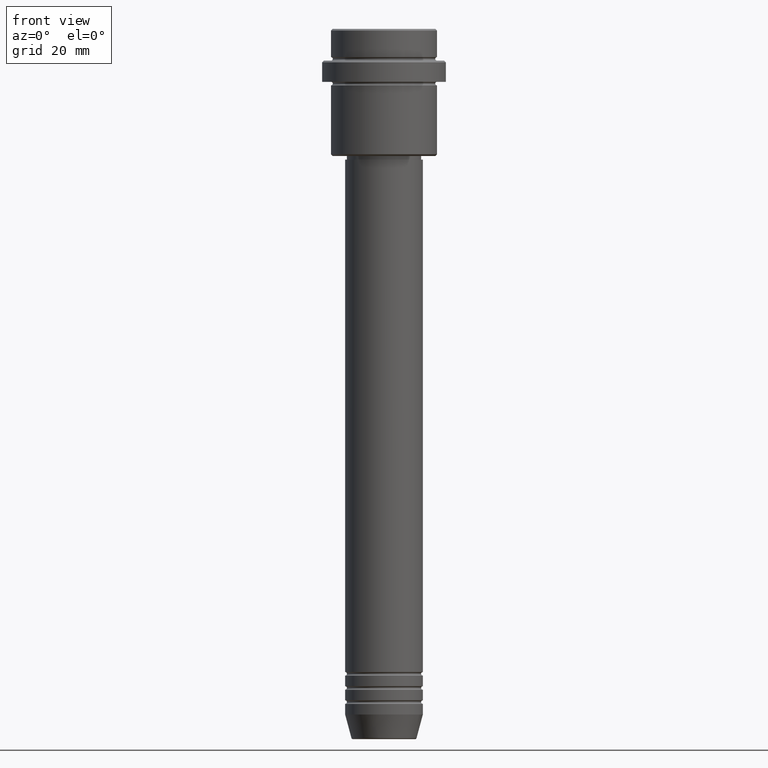
[diagram: clean part render]
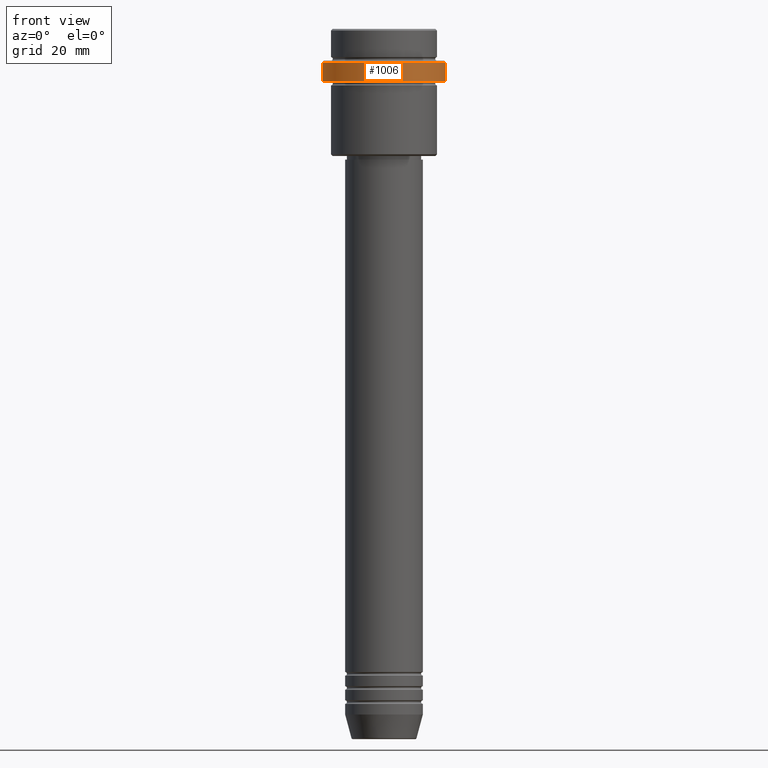
[diagram: same view with one face highlighted and labeled with its STEP entity id]
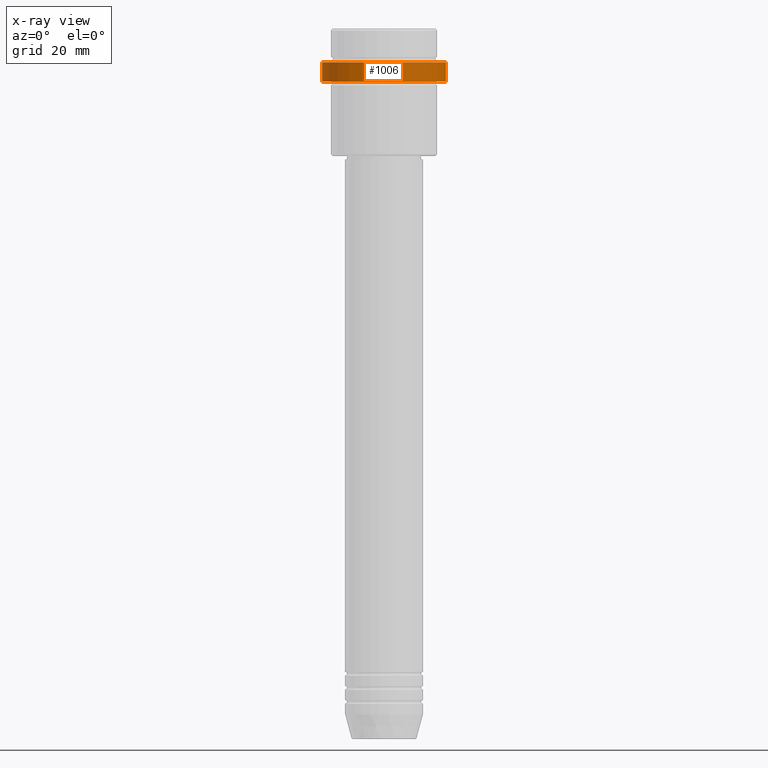
[diagram: x-ray of the same camera — body ghosted, the highlighted face saturated]
A machine part, front view. The second image highlights one B-rep face of the part: STEP entity #1006.
The next image is the same camera in x-ray: the body ghosted, the highlighted face saturated — about 0% of this face is hidden behind the body in this view.
In plain terms, the highlighted cylindrical surface (partial cylindrical patch) has radius 17.5 mm, axis along (-0, -0, 1).
Its self-contained STEP definition (entity closure, byte-faithful):
#132 = DIRECTION ( 'NONE',  ( -0.000000000000000000, -0.000000000000000000, 1.000000000000000000 ) ) ;
#179 = DIRECTION ( 'NONE',  ( 0.000000000000000000, 0.000000000000000000, -1.000000000000000000 ) ) ;
#207 = CARTESIAN_POINT ( 'NONE',  ( 0.000000000000000000, 0.000000000000000000, 0.000000000000000000 ) ) ;
#224 = VERTEX_POINT ( 'NONE', #732 ) ;
#296 = LINE ( 'NONE', #973, #729 ) ;
#302 = CYLINDRICAL_SURFACE ( 'NONE', #1038, 17.50000000000000000 ) ;
#347 = ORIENTED_EDGE ( 'NONE', *, *, #1024, .F. ) ;
#385 = VERTEX_POINT ( 'NONE', #582 ) ;
#405 = DIRECTION ( 'NONE',  ( -0.000000000000000000, -0.000000000000000000, 1.000000000000000000 ) ) ;
#499 = EDGE_CURVE ( 'NONE', #1247, #224, #1191, .T. ) ;
#521 = DIRECTION ( 'NONE',  ( -0.000000000000000000, -0.000000000000000000, 1.000000000000000000 ) ) ;
#582 = CARTESIAN_POINT ( 'NONE',  ( 17.50000000000000000, 0.000000000000000000, -15.00000000000000000 ) ) ;
#617 = CARTESIAN_POINT ( 'NONE',  ( 0.000000000000000000, 0.000000000000000000, -9.500000000000026645 ) ) ;
#709 = CIRCLE ( 'NONE', #778, 17.50000000000000000 ) ;
#729 = VECTOR ( 'NONE', #521, 1000.000000000000000 ) ;
#732 = CARTESIAN_POINT ( 'NONE',  ( -17.50000000000000000, 2.143131898507868248E-15, -9.500000000000026645 ) ) ;
#767 = VERTEX_POINT ( 'NONE', #768 ) ;
#768 = CARTESIAN_POINT ( 'NONE',  ( -17.50000000000000000, 2.143131898507868248E-15, -15.00000000000000000 ) ) ;
#778 = AXIS2_PLACEMENT_3D ( 'NONE', #1090, #132, #1341 ) ;
#805 = ORIENTED_EDGE ( 'NONE', *, *, #499, .T. ) ;
#816 = ORIENTED_EDGE ( 'NONE', *, *, #1136, .T. ) ;
#832 = FACE_OUTER_BOUND ( 'NONE', #1255, .T. ) ;
#838 = DIRECTION ( 'NONE',  ( 1.000000000000000000, 0.000000000000000000, 0.000000000000000000 ) ) ;
#882 = LINE ( 'NONE', #1417, #1013 ) ;
#973 = CARTESIAN_POINT ( 'NONE',  ( -17.50000000000000000, 2.143131898507868248E-15, 0.000000000000000000 ) ) ;
#986 = CARTESIAN_POINT ( 'NONE',  ( 17.50000000000000000, 0.000000000000000000, -9.500000000000026645 ) ) ;
#1006 = ADVANCED_FACE ( 'NONE', ( #832 ), #302, .T. ) ;
#1013 = VECTOR ( 'NONE', #1107, 1000.000000000000000 ) ;
#1024 = EDGE_CURVE ( 'NONE', #767, #224, #296, .T. ) ;
#1038 = AXIS2_PLACEMENT_3D ( 'NONE', #207, #405, #838 ) ;
#1090 = CARTESIAN_POINT ( 'NONE',  ( 0.000000000000000000, 0.000000000000000000, -15.00000000000000000 ) ) ;
#1107 = DIRECTION ( 'NONE',  ( -0.000000000000000000, -0.000000000000000000, 1.000000000000000000 ) ) ;
#1122 = ORIENTED_EDGE ( 'NONE', *, *, #1214, .T. ) ;
#1136 = EDGE_CURVE ( 'NONE', #767, #385, #709, .T. ) ;
#1191 = CIRCLE ( 'NONE', #1239, 17.50000000000000000 ) ;
#1214 = EDGE_CURVE ( 'NONE', #385, #1247, #882, .T. ) ;
#1239 = AXIS2_PLACEMENT_3D ( 'NONE', #617, #179, #1381 ) ;
#1247 = VERTEX_POINT ( 'NONE', #986 ) ;
#1255 = EDGE_LOOP ( 'NONE', ( #347, #816, #1122, #805 ) ) ;
#1341 = DIRECTION ( 'NONE',  ( 1.000000000000000000, 0.000000000000000000, 0.000000000000000000 ) ) ;
#1381 = DIRECTION ( 'NONE',  ( 1.000000000000000000, 0.000000000000000000, 0.000000000000000000 ) ) ;
#1417 = CARTESIAN_POINT ( 'NONE',  ( 17.50000000000000000, 0.000000000000000000, 0.000000000000000000 ) ) ;